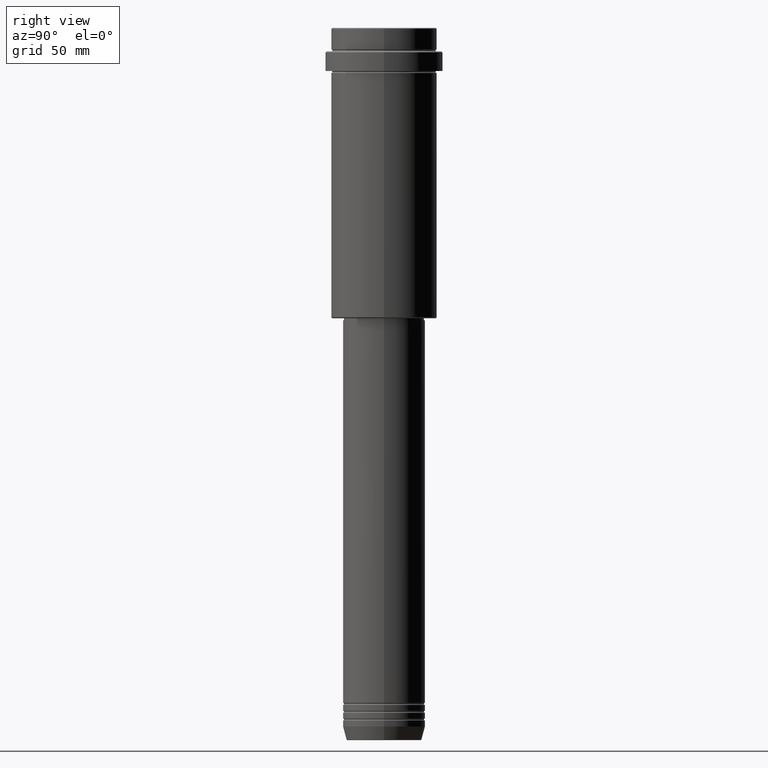
[diagram: clean part render]
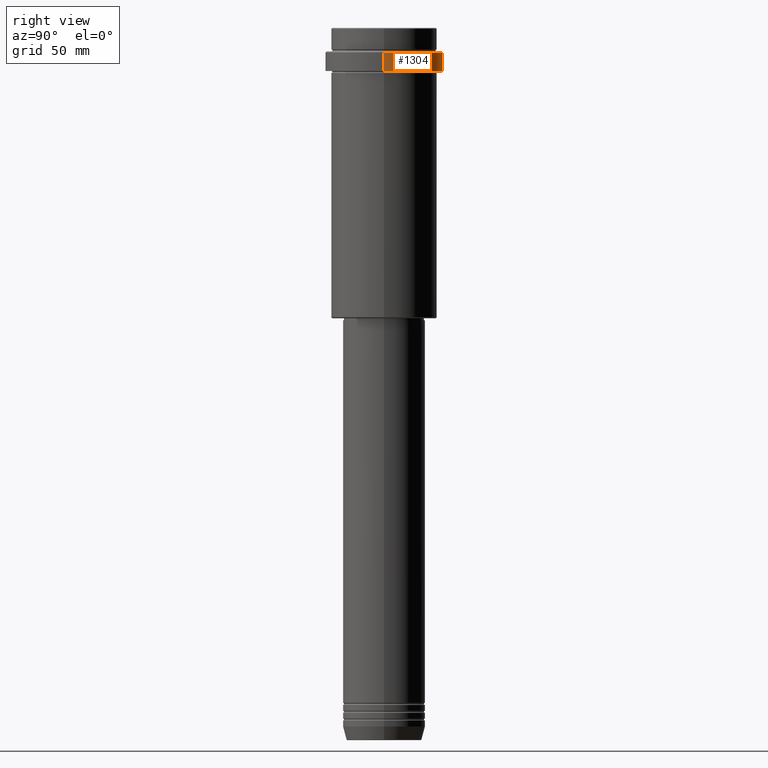
[diagram: same view with one face highlighted and labeled with its STEP entity id]
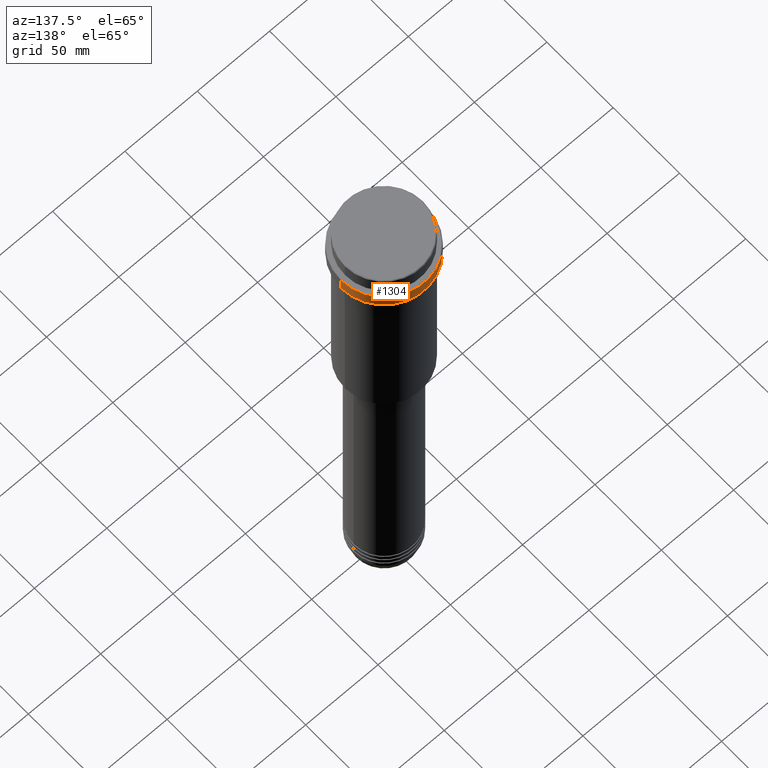
[diagram: same view with one face highlighted and labeled with its STEP entity id]
A machine part, right view. The second image highlights one B-rep face of the part: STEP entity #1304.
A second angle (auxiliary view) of the same face is appended — the face is thin or edge-on in the first view.
In plain terms, the highlighted cylindrical surface (partial cylindrical patch) has radius 30 mm, axis along (-0, -0, 1).
Its self-contained STEP definition (entity closure, byte-faithful):
#27 = ORIENTED_EDGE ( 'NONE', *, *, #1190, .T. ) ;
#32 = CARTESIAN_POINT ( 'NONE',  ( -30.00000000000000000, 3.673940397442059178E-15, -12.50000000000006573 ) ) ;
#58 = EDGE_CURVE ( 'NONE', #176, #590, #1286, .T. ) ;
#60 = CARTESIAN_POINT ( 'NONE',  ( 30.00000000000000000, 0.000000000000000000, -12.50000000000006573 ) ) ;
#81 = CARTESIAN_POINT ( 'NONE',  ( -29.99999999999999645, 3.673940397442058389E-15, -22.00000000000000355 ) ) ;
#116 = EDGE_CURVE ( 'NONE', #666, #590, #1137, .T. ) ;
#119 = AXIS2_PLACEMENT_3D ( 'NONE', #831, #1377, #1264 ) ;
#131 = DIRECTION ( 'NONE',  ( -0.000000000000000000, -0.000000000000000000, 1.000000000000000000 ) ) ;
#176 = VERTEX_POINT ( 'NONE', #1265 ) ;
#208 = CARTESIAN_POINT ( 'NONE',  ( 30.00000000000000000, 0.000000000000000000, 0.000000000000000000 ) ) ;
#323 = VECTOR ( 'NONE', #131, 1000.000000000000000 ) ;
#358 = CARTESIAN_POINT ( 'NONE',  ( 0.000000000000000000, 0.000000000000000000, -22.00000000000000355 ) ) ;
#413 = CYLINDRICAL_SURFACE ( 'NONE', #119, 30.00000000000000000 ) ;
#426 = DIRECTION ( 'NONE',  ( 0.000000000000000000, 0.000000000000000000, -1.000000000000000000 ) ) ;
#438 = ORIENTED_EDGE ( 'NONE', *, *, #58, .F. ) ;
#481 = ORIENTED_EDGE ( 'NONE', *, *, #557, .T. ) ;
#503 = CIRCLE ( 'NONE', #1300, 29.99999999999999645 ) ;
#557 = EDGE_CURVE ( 'NONE', #1282, #666, #608, .T. ) ;
#587 = AXIS2_PLACEMENT_3D ( 'NONE', #1406, #426, #865 ) ;
#590 = VERTEX_POINT ( 'NONE', #60 ) ;
#608 = LINE ( 'NONE', #1106, #323 ) ;
#628 = FACE_OUTER_BOUND ( 'NONE', #994, .T. ) ;
#666 = VERTEX_POINT ( 'NONE', #32 ) ;
#698 = ORIENTED_EDGE ( 'NONE', *, *, #116, .T. ) ;
#753 = VECTOR ( 'NONE', #973, 1000.000000000000000 ) ;
#786 = DIRECTION ( 'NONE',  ( -0.000000000000000000, -0.000000000000000000, 1.000000000000000000 ) ) ;
#831 = CARTESIAN_POINT ( 'NONE',  ( 0.000000000000000000, 0.000000000000000000, 0.000000000000000000 ) ) ;
#865 = DIRECTION ( 'NONE',  ( 1.000000000000000000, 0.000000000000000000, 0.000000000000000000 ) ) ;
#943 = DIRECTION ( 'NONE',  ( 1.000000000000000000, 0.000000000000000000, 0.000000000000000000 ) ) ;
#973 = DIRECTION ( 'NONE',  ( -0.000000000000000000, -0.000000000000000000, 1.000000000000000000 ) ) ;
#994 = EDGE_LOOP ( 'NONE', ( #27, #481, #698, #438 ) ) ;
#1106 = CARTESIAN_POINT ( 'NONE',  ( -30.00000000000000000, 3.673940397442059178E-15, 0.000000000000000000 ) ) ;
#1137 = CIRCLE ( 'NONE', #587, 30.00000000000000000 ) ;
#1190 = EDGE_CURVE ( 'NONE', #176, #1282, #503, .T. ) ;
#1264 = DIRECTION ( 'NONE',  ( 1.000000000000000000, 0.000000000000000000, 0.000000000000000000 ) ) ;
#1265 = CARTESIAN_POINT ( 'NONE',  ( 29.99999999999999645, 0.000000000000000000, -22.00000000000000355 ) ) ;
#1282 = VERTEX_POINT ( 'NONE', #81 ) ;
#1286 = LINE ( 'NONE', #208, #753 ) ;
#1300 = AXIS2_PLACEMENT_3D ( 'NONE', #358, #786, #943 ) ;
#1304 = ADVANCED_FACE ( 'NONE', ( #628 ), #413, .T. ) ;
#1377 = DIRECTION ( 'NONE',  ( -0.000000000000000000, -0.000000000000000000, 1.000000000000000000 ) ) ;
#1406 = CARTESIAN_POINT ( 'NONE',  ( 0.000000000000000000, 0.000000000000000000, -12.50000000000006573 ) ) ;